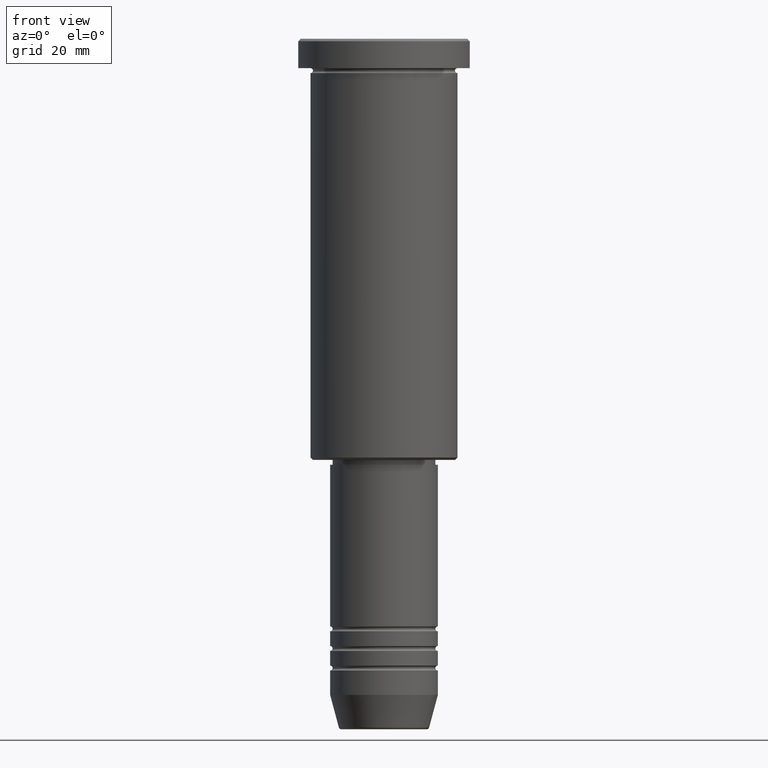
[diagram: clean part render]
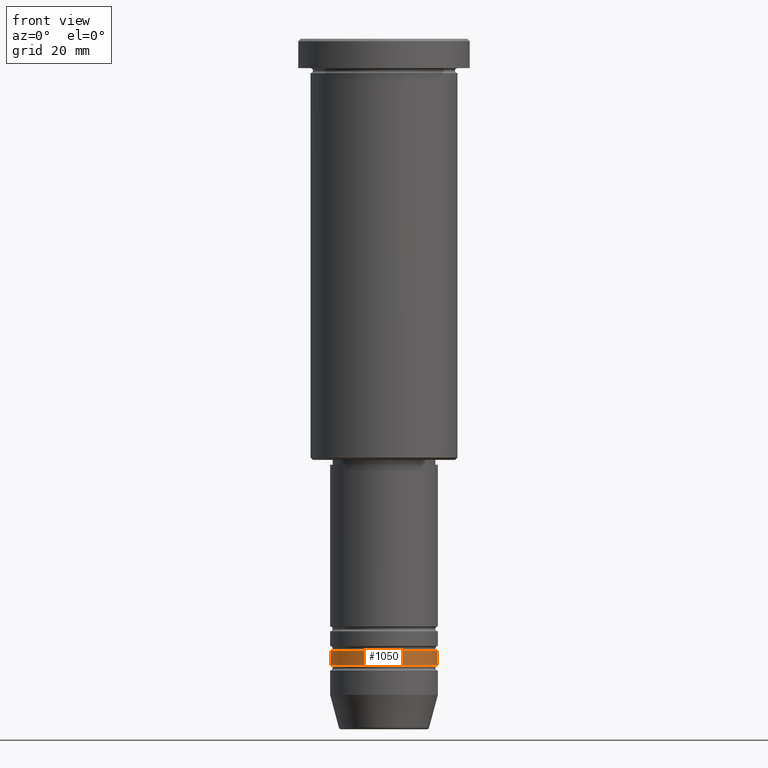
[diagram: same view with one face highlighted and labeled with its STEP entity id]
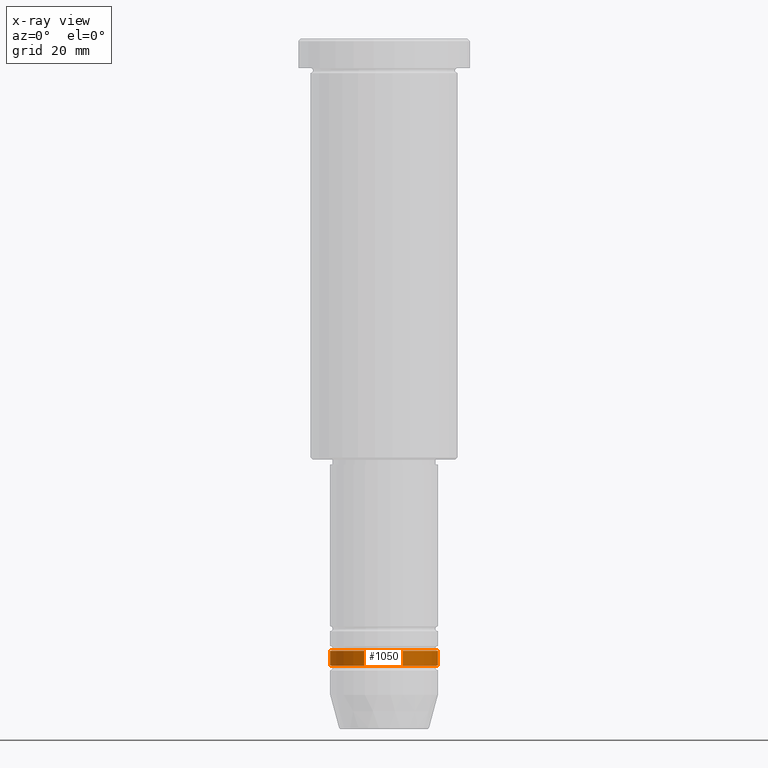
[diagram: x-ray of the same camera — body ghosted, the highlighted face saturated]
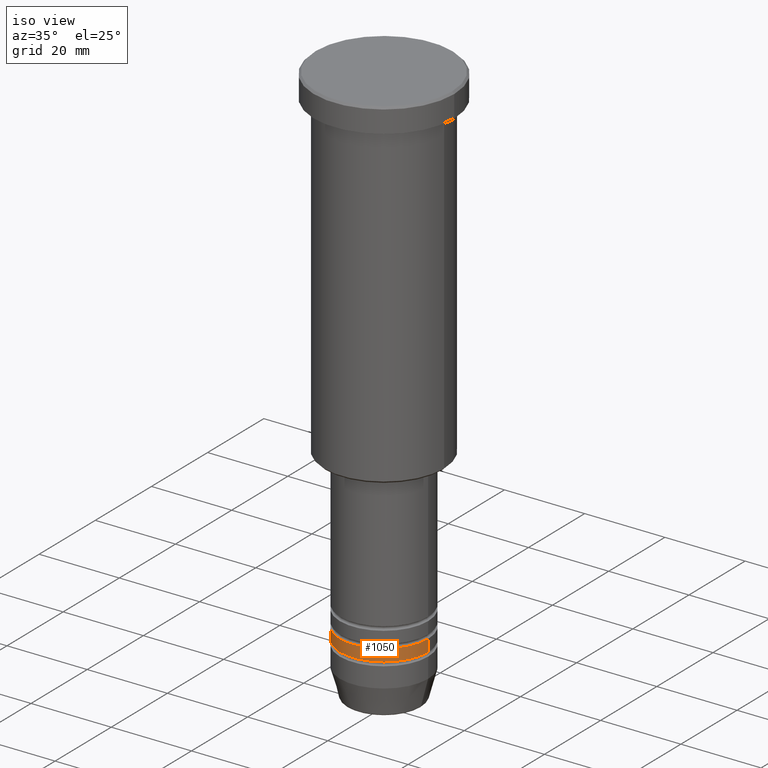
[diagram: same view with one face highlighted and labeled with its STEP entity id]
A machine part, front view. The second image highlights one B-rep face of the part: STEP entity #1050.
The next image is the same camera in x-ray: the body ghosted, the highlighted face saturated — about 0% of this face is hidden behind the body in this view.
A second angle (iso view) of the same face is appended — the face is thin or edge-on in the first view.
In plain terms, the highlighted cylindrical surface (partial cylindrical patch) has radius 11 mm, axis along (-0, -0, 1).
Its self-contained STEP definition (entity closure, byte-faithful):
#145 = EDGE_CURVE ( 'NONE', #850, #386, #614, .T. ) ;
#151 = CIRCLE ( 'NONE', #623, 11.00000000000000000 ) ;
#183 = ORIENTED_EDGE ( 'NONE', *, *, #276, .T. ) ;
#212 = CYLINDRICAL_SURFACE ( 'NONE', #823, 11.00000000000000000 ) ;
#247 = CARTESIAN_POINT ( 'NONE',  ( 0.000000000000000000, 0.000000000000000000, -127.9999999999998863 ) ) ;
#276 = EDGE_CURVE ( 'NONE', #718, #850, #589, .T. ) ;
#315 = FACE_OUTER_BOUND ( 'NONE', #344, .T. ) ;
#344 = EDGE_LOOP ( 'NONE', ( #602, #183, #940, #854 ) ) ;
#386 = VERTEX_POINT ( 'NONE', #1146 ) ;
#405 = VECTOR ( 'NONE', #983, 1000.000000000000000 ) ;
#503 = LINE ( 'NONE', #984, #405 ) ;
#524 = DIRECTION ( 'NONE',  ( -0.000000000000000000, -0.000000000000000000, 1.000000000000000000 ) ) ;
#525 = EDGE_CURVE ( 'NONE', #689, #386, #151, .T. ) ;
#574 = DIRECTION ( 'NONE',  ( -0.000000000000000000, -0.000000000000000000, 1.000000000000000000 ) ) ;
#589 = CIRCLE ( 'NONE', #642, 11.00000000000000000 ) ;
#602 = ORIENTED_EDGE ( 'NONE', *, *, #1076, .F. ) ;
#603 = CARTESIAN_POINT ( 'NONE',  ( -11.00000000000000000, 1.347111479062088405E-15, -124.9999999999998863 ) ) ;
#614 = LINE ( 'NONE', #1069, #1159 ) ;
#623 = AXIS2_PLACEMENT_3D ( 'NONE', #794, #803, #698 ) ;
#642 = AXIS2_PLACEMENT_3D ( 'NONE', #247, #1008, #1024 ) ;
#689 = VERTEX_POINT ( 'NONE', #603 ) ;
#698 = DIRECTION ( 'NONE',  ( 1.000000000000000000, 0.000000000000000000, 0.000000000000000000 ) ) ;
#718 = VERTEX_POINT ( 'NONE', #1026 ) ;
#778 = DIRECTION ( 'NONE',  ( 1.000000000000000000, 0.000000000000000000, 0.000000000000000000 ) ) ;
#794 = CARTESIAN_POINT ( 'NONE',  ( 0.000000000000000000, 0.000000000000000000, -124.9999999999998863 ) ) ;
#803 = DIRECTION ( 'NONE',  ( -0.000000000000000000, -0.000000000000000000, 1.000000000000000000 ) ) ;
#823 = AXIS2_PLACEMENT_3D ( 'NONE', #1058, #574, #778 ) ;
#850 = VERTEX_POINT ( 'NONE', #1030 ) ;
#854 = ORIENTED_EDGE ( 'NONE', *, *, #525, .F. ) ;
#940 = ORIENTED_EDGE ( 'NONE', *, *, #145, .T. ) ;
#983 = DIRECTION ( 'NONE',  ( -0.000000000000000000, -0.000000000000000000, 1.000000000000000000 ) ) ;
#984 = CARTESIAN_POINT ( 'NONE',  ( -11.00000000000000000, 1.347111479062088405E-15, 0.000000000000000000 ) ) ;
#1008 = DIRECTION ( 'NONE',  ( -0.000000000000000000, -0.000000000000000000, 1.000000000000000000 ) ) ;
#1024 = DIRECTION ( 'NONE',  ( 1.000000000000000000, 0.000000000000000000, 0.000000000000000000 ) ) ;
#1026 = CARTESIAN_POINT ( 'NONE',  ( -11.00000000000000000, 1.347111479062088405E-15, -127.9999999999998863 ) ) ;
#1030 = CARTESIAN_POINT ( 'NONE',  ( 11.00000000000000000, 0.000000000000000000, -127.9999999999998863 ) ) ;
#1050 = ADVANCED_FACE ( 'NONE', ( #315 ), #212, .T. ) ;
#1058 = CARTESIAN_POINT ( 'NONE',  ( 0.000000000000000000, 0.000000000000000000, 0.000000000000000000 ) ) ;
#1069 = CARTESIAN_POINT ( 'NONE',  ( 11.00000000000000000, 0.000000000000000000, 0.000000000000000000 ) ) ;
#1076 = EDGE_CURVE ( 'NONE', #718, #689, #503, .T. ) ;
#1146 = CARTESIAN_POINT ( 'NONE',  ( 11.00000000000000000, 0.000000000000000000, -124.9999999999998863 ) ) ;
#1159 = VECTOR ( 'NONE', #524, 1000.000000000000000 ) ;